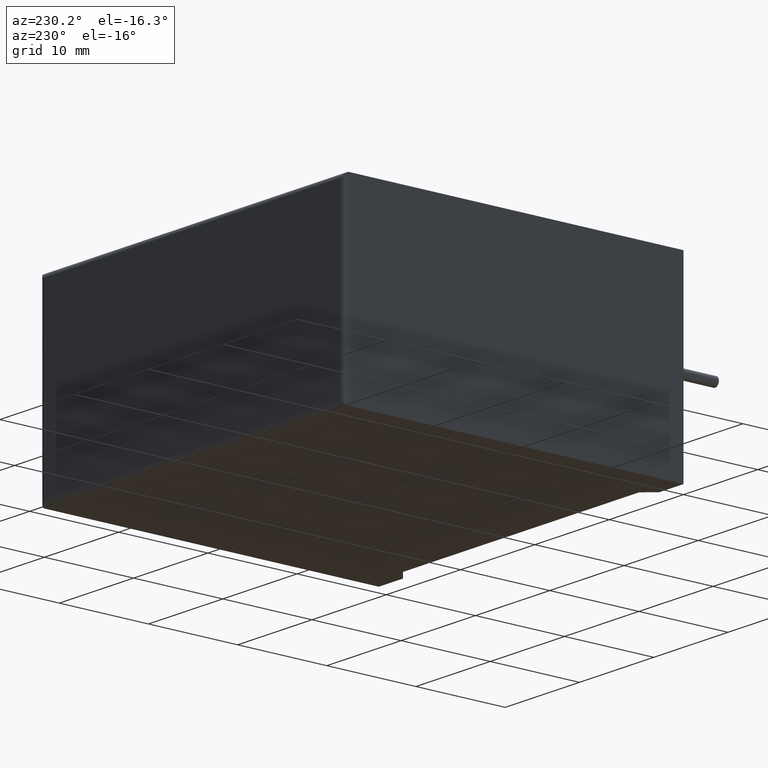
[diagram: clean part render]
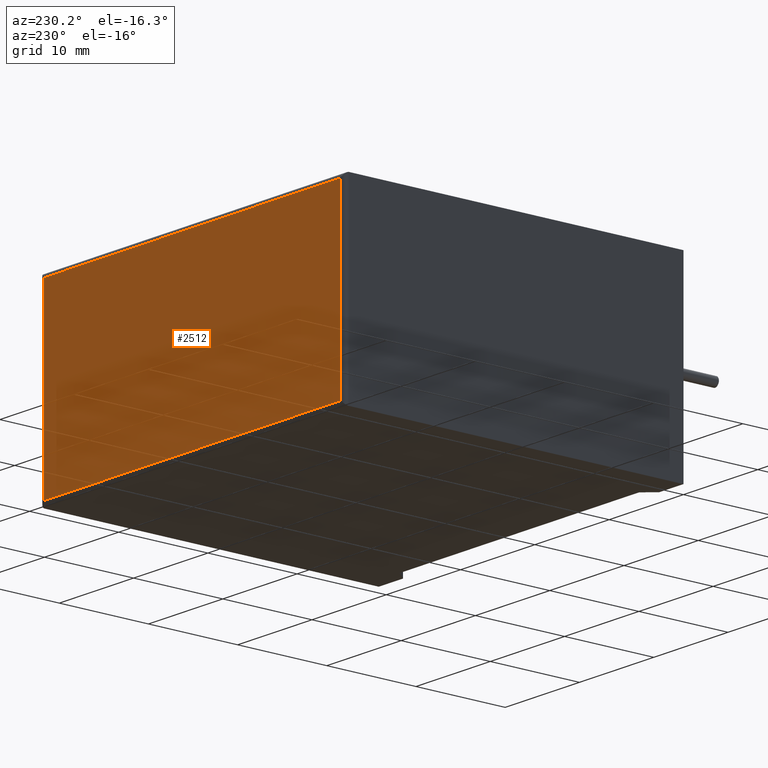
[diagram: same view with one face highlighted and labeled with its STEP entity id]
A machine part, auxiliary view. The second image highlights one B-rep face of the part: STEP entity #2512.
In plain terms, the highlighted planar face has unit normal (0, -1, 0).
Its self-contained STEP definition (entity closure, byte-faithful):
#123 = VERTEX_POINT ( 'NONE', #2394 ) ;
#142 = ORIENTED_EDGE ( 'NONE', *, *, #3056, .T. ) ;
#181 = EDGE_CURVE ( 'NONE', #1185, #912, #3151, .T. ) ;
#231 = DIRECTION ( 'NONE',  ( -1.000000000000000000, 0.000000000000000000, 0.000000000000000000 ) ) ;
#251 = EDGE_CURVE ( 'NONE', #123, #647, #2275, .T. ) ;
#452 = FACE_OUTER_BOUND ( 'NONE', #2010, .T. ) ;
#508 = ORIENTED_EDGE ( 'NONE', *, *, #2555, .T. ) ;
#578 = ORIENTED_EDGE ( 'NONE', *, *, #251, .T. ) ;
#647 = VERTEX_POINT ( 'NONE', #1580 ) ;
#671 = CARTESIAN_POINT ( 'NONE',  ( 0.000000000000000000, 38.00000000000000000, 21.00000000000000000 ) ) ;
#759 = CARTESIAN_POINT ( 'NONE',  ( 0.4999999999999998890, 38.00000000000000000, 21.00000000000000000 ) ) ;
#817 = LINE ( 'NONE', #3202, #2679 ) ;
#912 = VERTEX_POINT ( 'NONE', #2779 ) ;
#921 = VECTOR ( 'NONE', #1651, 1000.000000000000000 ) ;
#1161 = CARTESIAN_POINT ( 'NONE',  ( 40.49999999999999289, 38.00000000000000000, 21.00000000000000000 ) ) ;
#1165 = PLANE ( 'NONE',  #1774 ) ;
#1185 = VERTEX_POINT ( 'NONE', #1853 ) ;
#1580 = CARTESIAN_POINT ( 'NONE',  ( 0.4999999999999998890, 38.00000000000000000, 20.50000000000000000 ) ) ;
#1651 = DIRECTION ( 'NONE',  ( 0.000000000000000000, 0.000000000000000000, -1.000000000000000000 ) ) ;
#1698 = DIRECTION ( 'NONE',  ( 0.000000000000000000, -0.000000000000000000, -1.000000000000000000 ) ) ;
#1774 = AXIS2_PLACEMENT_3D ( 'NONE', #671, #1960, #1698 ) ;
#1787 = DIRECTION ( 'NONE',  ( -0.000000000000000000, -0.000000000000000000, 1.000000000000000000 ) ) ;
#1853 = CARTESIAN_POINT ( 'NONE',  ( 40.49999999999999289, 38.00000000000000000, 20.50000000000000000 ) ) ;
#1960 = DIRECTION ( 'NONE',  ( 0.000000000000000000, -1.000000000000000000, 0.000000000000000000 ) ) ;
#2010 = EDGE_LOOP ( 'NONE', ( #508, #578, #142, #2193 ) ) ;
#2105 = VECTOR ( 'NONE', #1787, 1000.000000000000000 ) ;
#2193 = ORIENTED_EDGE ( 'NONE', *, *, #181, .T. ) ;
#2275 = LINE ( 'NONE', #759, #2105 ) ;
#2323 = DIRECTION ( 'NONE',  ( 1.000000000000000000, -0.000000000000000000, -0.000000000000000000 ) ) ;
#2394 = CARTESIAN_POINT ( 'NONE',  ( 0.4999999999999998890, 38.00000000000000000, 0.5000000000000004441 ) ) ;
#2512 = ADVANCED_FACE ( 'NONE', ( #452 ), #1165, .F. ) ;
#2555 = EDGE_CURVE ( 'NONE', #912, #123, #817, .T. ) ;
#2562 = CARTESIAN_POINT ( 'NONE',  ( 0.000000000000000000, 38.00000000000000000, 20.50000000000000000 ) ) ;
#2679 = VECTOR ( 'NONE', #231, 1000.000000000000000 ) ;
#2779 = CARTESIAN_POINT ( 'NONE',  ( 40.49999999999999289, 38.00000000000000000, 0.5000000000000004441 ) ) ;
#2823 = LINE ( 'NONE', #2562, #3143 ) ;
#3056 = EDGE_CURVE ( 'NONE', #647, #1185, #2823, .T. ) ;
#3143 = VECTOR ( 'NONE', #2323, 1000.000000000000000 ) ;
#3151 = LINE ( 'NONE', #1161, #921 ) ;
#3202 = CARTESIAN_POINT ( 'NONE',  ( 0.000000000000000000, 38.00000000000000000, 0.5000000000000004441 ) ) ;